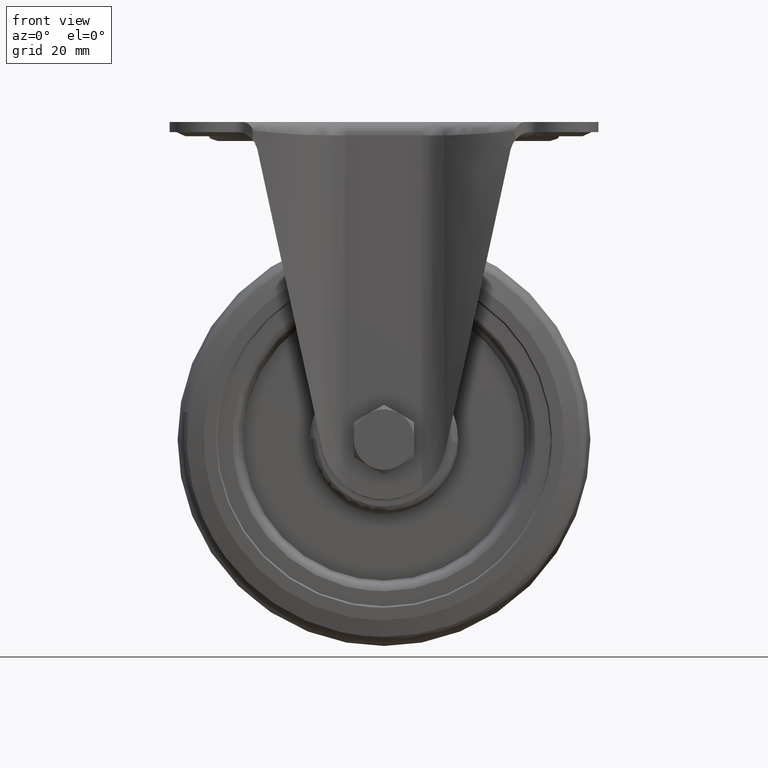
[diagram: clean part render]
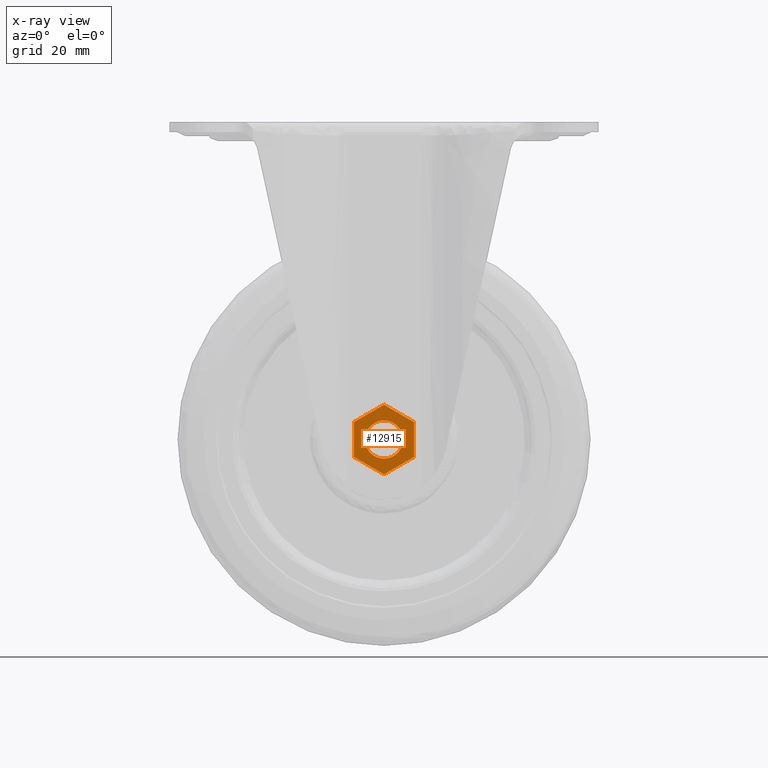
[diagram: x-ray — body ghosted, one internal face saturated and labeled with its STEP entity id]
A machine part, front view, then the same camera in x-ray: the body is ghosted and one INTERNAL B-rep face — a face not visible from any outside direction — is saturated and labeled: STEP entity #12915.
In plain terms, the highlighted face is a freeform B-spline surface patch.
Its self-contained STEP definition (entity closure, byte-faithful):
#12703=CARTESIAN_POINT('',(9.500000000000000,-28.850000000000001,-105.484827999999990));
#12704=VERTEX_POINT('',#12703);
#12712=CARTESIAN_POINT('',(0.0,-28.850000000000001,-110.969655000000200));
#12713=VERTEX_POINT('',#12712);
#12719=CARTESIAN_POINT('',(9.500000000000000,-28.850000000000001,-105.484827999999990));
#12720=CARTESIAN_POINT('',(0.0,-28.850000000000001,-110.969655000000200));
#12721=QUASI_UNIFORM_CURVE('',1,(#12719,#12720),.UNSPECIFIED.,.F.,.U.);
#12722=EDGE_CURVE('',#12704,#12713,#12721,.T.);
#12732=CARTESIAN_POINT('',(9.500000000000000,-28.850000000000001,-94.515172000000192));
#12733=VERTEX_POINT('',#12732);
#12742=CARTESIAN_POINT('',(9.500000000000000,-28.850000000000001,-94.515172000000192));
#12743=CARTESIAN_POINT('',(9.500000000000000,-28.850000000000001,-105.484827999999990));
#12744=QUASI_UNIFORM_CURVE('',1,(#12742,#12743),.UNSPECIFIED.,.F.,.U.);
#12745=EDGE_CURVE('',#12733,#12704,#12744,.T.);
#12755=CARTESIAN_POINT('',(0.0,-28.850000000000001,-89.030345000000096));
#12756=VERTEX_POINT('',#12755);
#12765=CARTESIAN_POINT('',(0.0,-28.850000000000001,-89.030345000000096));
#12766=CARTESIAN_POINT('',(9.500000000000000,-28.850000000000001,-94.515172000000192));
#12767=QUASI_UNIFORM_CURVE('',1,(#12765,#12766),.UNSPECIFIED.,.F.,.U.);
#12768=EDGE_CURVE('',#12756,#12733,#12767,.T.);
#12778=CARTESIAN_POINT('',(-9.500000000000000,-28.850000000000001,-94.515172000000192));
#12779=VERTEX_POINT('',#12778);
#12788=CARTESIAN_POINT('',(-9.500000000000000,-28.850000000000001,-94.515172000000192));
#12789=CARTESIAN_POINT('',(0.0,-28.850000000000001,-89.030345000000096));
#12790=QUASI_UNIFORM_CURVE('',1,(#12788,#12789),.UNSPECIFIED.,.F.,.U.);
#12791=EDGE_CURVE('',#12779,#12756,#12790,.T.);
#12801=CARTESIAN_POINT('',(-9.500000000000000,-28.850000000000001,-105.484827999999990));
#12802=VERTEX_POINT('',#12801);
#12811=CARTESIAN_POINT('',(-9.500000000000000,-28.850000000000001,-105.484827999999990));
#12812=CARTESIAN_POINT('',(-9.500000000000000,-28.850000000000001,-94.515172000000192));
#12813=QUASI_UNIFORM_CURVE('',1,(#12811,#12812),.UNSPECIFIED.,.F.,.U.);
#12814=EDGE_CURVE('',#12802,#12779,#12813,.T.);
#12828=CARTESIAN_POINT('',(0.0,-28.850000000000001,-110.969655000000200));
#12829=CARTESIAN_POINT('',(-9.500000000000000,-28.850000000000001,-105.484827999999990));
#12830=QUASI_UNIFORM_CURVE('',1,(#12828,#12829),.UNSPECIFIED.,.F.,.U.);
#12831=EDGE_CURVE('',#12713,#12802,#12830,.T.);
#12836=CARTESIAN_POINT('',(-10.449049963174311,-28.850000000000001,-87.934476508022726));
#12837=CARTESIAN_POINT('',(-10.449049963174311,-28.850000000000001,-112.065524080435690));
#12838=CARTESIAN_POINT('',(10.449050472794021,-28.850000000000001,-87.934476508022726));
#12839=CARTESIAN_POINT('',(10.449050472794021,-28.850000000000001,-112.065524080435690));
#12840=B_SPLINE_SURFACE_WITH_KNOTS('',1,1,((#12836,#12838),(#12837,#12839)),.UNSPECIFIED.,.F.,.F.,.U.,(2,2),(2,2),(0.0,24.131047572412982),(0.0,20.898100435968342),.UNSPECIFIED.);
#12841=ORIENTED_EDGE('',*,*,#12722,.T.);
#12842=ORIENTED_EDGE('',*,*,#12831,.T.);
#12843=ORIENTED_EDGE('',*,*,#12814,.T.);
#12844=ORIENTED_EDGE('',*,*,#12791,.T.);
#12845=ORIENTED_EDGE('',*,*,#12768,.T.);
#12846=ORIENTED_EDGE('',*,*,#12745,.T.);
#12847=EDGE_LOOP('',(#12841,#12842,#12843,#12844,#12845,#12846));
#12848=FACE_OUTER_BOUND('',#12847,.T.);
#12849=CARTESIAN_POINT('',(0.0,-28.850000000000001,-94.0));
#12850=VERTEX_POINT('',#12849);
#12851=CARTESIAN_POINT('',(-5.988809394682336,-28.849999999999959,-99.633718640842005));
#12852=VERTEX_POINT('',#12851);
#12853=CARTESIAN_POINT('',(0.0,-28.850000000000001,-94.0));
#12854=CARTESIAN_POINT('',(-5.644245728540441,-28.849999999999987,-94.000000000000256));
#12855=CARTESIAN_POINT('',(-5.988809394682336,-28.849999999999959,-99.633718640842005));
#12863=(BOUNDED_CURVE()B_SPLINE_CURVE(2,(#12853,#12854,#12855),.UNSPECIFIED.,.F.,.U.)B_SPLINE_CURVE_WITH_KNOTS((3,3),(0.500000000000000,0.739333246843871),.UNSPECIFIED.)CURVE()GEOMETRIC_REPRESENTATION_ITEM()RATIONAL_B_SPLINE_CURVE((1.0,0.719603659851296,0.976072651630014))REPRESENTATION_ITEM(''));
#12864=EDGE_CURVE('',#12850,#12852,#12863,.T.);
#12865=ORIENTED_EDGE('',*,*,#12864,.T.);
#12866=CARTESIAN_POINT('',(0.0,-28.850000000000001,-106.0));
#12867=VERTEX_POINT('',#12866);
#12868=CARTESIAN_POINT('',(-5.988809394682336,-28.849999999999959,-99.633718640842005));
#12869=CARTESIAN_POINT('',(-5.999999999991970,-28.849999999999959,-99.816688373082457));
#12870=CARTESIAN_POINT('',(-5.999999999992094,-28.849999999999959,-100.000000000000500));
#12871=CARTESIAN_POINT('',(-5.999999999996168,-28.849999999999987,-106.000000000000240));
#12872=CARTESIAN_POINT('',(0.0,-28.850000000000001,-106.0));
#12880=(BOUNDED_CURVE()B_SPLINE_CURVE(2,(#12868,#12869,#12870,#12871,#12872),.UNSPECIFIED.,.F.,.U.)B_SPLINE_CURVE_WITH_KNOTS((3,2,3),(0.739333246843871,0.750000000000000,1.0),.UNSPECIFIED.)CURVE()GEOMETRIC_REPRESENTATION_ITEM()RATIONAL_B_SPLINE_CURVE((0.976072651630014,0.987503121335251,1.0,0.707106781186548,1.0))REPRESENTATION_ITEM(''));
#12881=EDGE_CURVE('',#12852,#12867,#12880,.T.);
#12882=ORIENTED_EDGE('',*,*,#12881,.T.);
#12883=CARTESIAN_POINT('',(5.988809394682336,-28.849999999999959,-100.366281359157990));
#12884=VERTEX_POINT('',#12883);
#12885=CARTESIAN_POINT('',(0.0,-28.850000000000001,-106.0));
#12886=CARTESIAN_POINT('',(5.644245728540437,-28.849999999999994,-105.999999999999790));
#12887=CARTESIAN_POINT('',(5.988809394682336,-28.849999999999959,-100.366281359158010));
#12895=(BOUNDED_CURVE()B_SPLINE_CURVE(2,(#12885,#12886,#12887),.UNSPECIFIED.,.F.,.U.)B_SPLINE_CURVE_WITH_KNOTS((3,3),(0.0,0.239333246843871),.UNSPECIFIED.)CURVE()GEOMETRIC_REPRESENTATION_ITEM()RATIONAL_B_SPLINE_CURVE((1.0,0.719603659851297,0.976072651630014))REPRESENTATION_ITEM(''));
#12896=EDGE_CURVE('',#12867,#12884,#12895,.T.);
#12897=ORIENTED_EDGE('',*,*,#12896,.T.);
#12898=CARTESIAN_POINT('',(5.988809394682336,-28.849999999999955,-100.366281359158010));
#12899=CARTESIAN_POINT('',(5.999999999991970,-28.849999999999955,-100.183311626917560));
#12900=CARTESIAN_POINT('',(5.999999999992094,-28.849999999999959,-99.999999999999517));
#12901=CARTESIAN_POINT('',(5.999999999996168,-28.849999999999987,-93.999999999999773));
#12902=CARTESIAN_POINT('',(0.0,-28.850000000000001,-94.0));
#12910=(BOUNDED_CURVE()B_SPLINE_CURVE(2,(#12898,#12899,#12900,#12901,#12902),.UNSPECIFIED.,.F.,.U.)B_SPLINE_CURVE_WITH_KNOTS((3,2,3),(0.239333246843871,0.250000000000000,0.500000000000000),.UNSPECIFIED.)CURVE()GEOMETRIC_REPRESENTATION_ITEM()RATIONAL_B_SPLINE_CURVE((0.976072651630014,0.987503121335251,1.0,0.707106781186548,1.0))REPRESENTATION_ITEM(''));
#12911=EDGE_CURVE('',#12884,#12850,#12910,.T.);
#12912=ORIENTED_EDGE('',*,*,#12911,.T.);
#12913=EDGE_LOOP('',(#12865,#12882,#12897,#12912));
#12914=FACE_BOUND('',#12913,.T.);
#12915=ADVANCED_FACE('',(#12848,#12914),#12840,.F.);